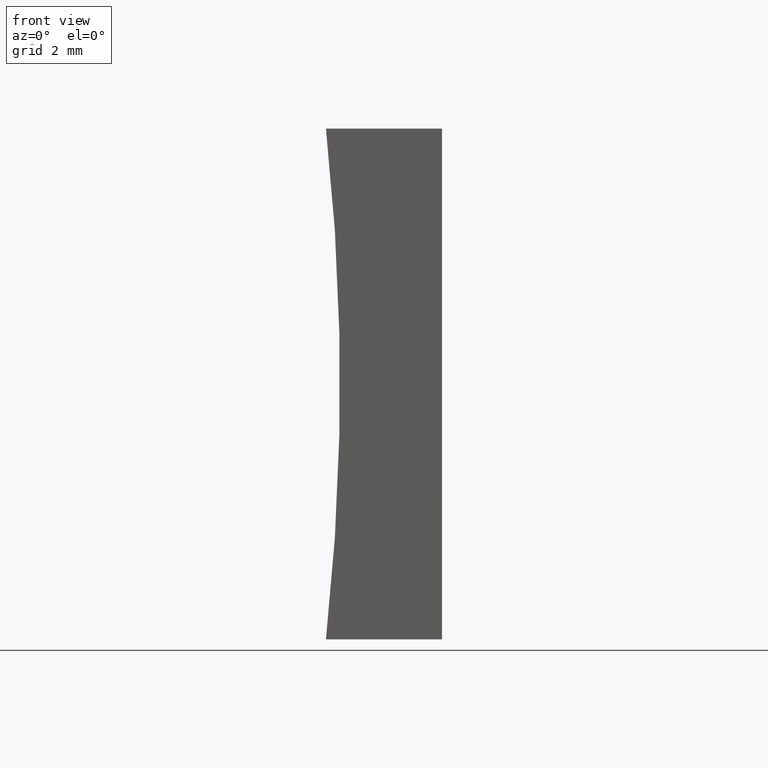
[diagram: clean part render]
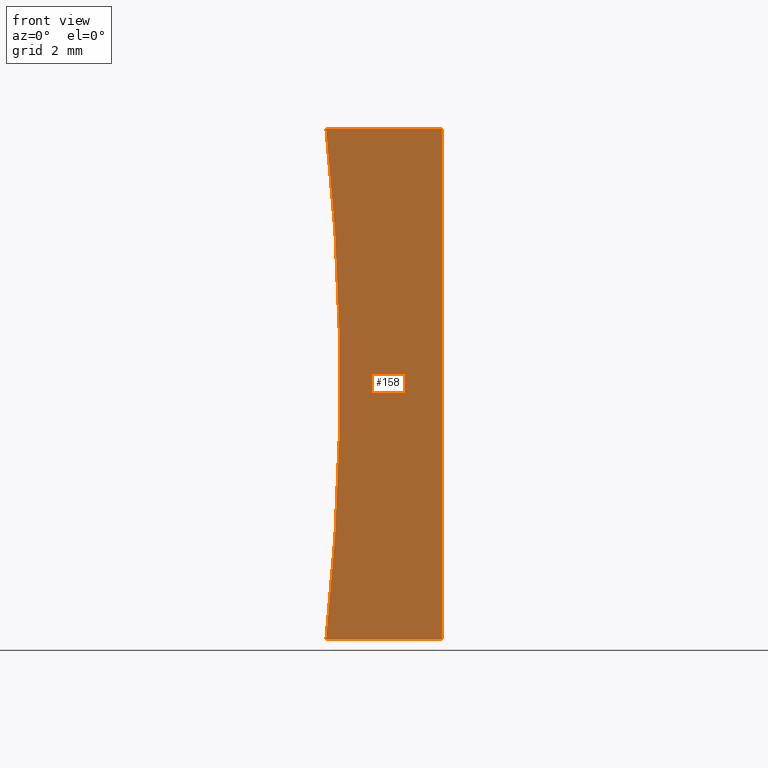
[diagram: same view with one face highlighted and labeled with its STEP entity id]
A machine part, front view. The second image highlights one B-rep face of the part: STEP entity #158.
In plain terms, the highlighted planar face has unit normal (0, 1, 0).
Its self-contained STEP definition (entity closure, byte-faithful):
#3 = CARTESIAN_POINT ( 'NONE',  ( -2.273443526304014000, 0.0000000000000000000, 8.673617379884035500E-016 ) ) ;
#19 = VERTEX_POINT ( 'NONE', #63 ) ;
#35 = CARTESIAN_POINT ( 'NONE',  ( 0.0000000000000000000, 0.0000000000000000000, 0.0000000000000000000 ) ) ;
#36 = DIRECTION ( 'NONE',  ( 0.0000000000000000000, 1.000000000000000000, 0.0000000000000000000 ) ) ;
#39 = CARTESIAN_POINT ( 'NONE',  ( -2.273443526304006900, 0.0000000000000000000, 10.00000000000000200 ) ) ;
#47 = ORIENTED_EDGE ( 'NONE', *, *, #109, .F. ) ;
#51 = CARTESIAN_POINT ( 'NONE',  ( -47.85000000000000100, 0.0000000000000000000, 5.000000000000004400 ) ) ;
#54 = EDGE_CURVE ( 'NONE', #127, #190, #117, .T. ) ;
#57 = LINE ( 'NONE', #159, #82 ) ;
#60 = DIRECTION ( 'NONE',  ( -6.123233995736766000E-017, -0.0000000000000000000, -1.000000000000000000 ) ) ;
#63 = CARTESIAN_POINT ( 'NONE',  ( 6.123233995736766300E-016, 0.0000000000000000000, 10.00000000000000000 ) ) ;
#71 = ORIENTED_EDGE ( 'NONE', *, *, #146, .F. ) ;
#77 = VECTOR ( 'NONE', #191, 1000.000000000000000 ) ;
#82 = VECTOR ( 'NONE', #60, 1000.000000000000000 ) ;
#84 = CARTESIAN_POINT ( 'NONE',  ( 0.0000000000000000000, 0.0000000000000000000, 0.0000000000000000000 ) ) ;
#85 = DIRECTION ( 'NONE',  ( 0.0000000000000000000, 0.0000000000000000000, 1.000000000000000000 ) ) ;
#108 = AXIS2_PLACEMENT_3D ( 'NONE', #51, #36, #114 ) ;
#109 = EDGE_CURVE ( 'NONE', #190, #19, #171, .T. ) ;
#114 = DIRECTION ( 'NONE',  ( 0.0000000000000000000, -0.0000000000000000000, 1.000000000000000000 ) ) ;
#117 = CIRCLE ( 'NONE', #183, 45.85000000000000100 ) ;
#120 = ORIENTED_EDGE ( 'NONE', *, *, #54, .F. ) ;
#123 = EDGE_LOOP ( 'NONE', ( #71, #186, #47, #120 ) ) ;
#127 = VERTEX_POINT ( 'NONE', #3 ) ;
#129 = DIRECTION ( 'NONE',  ( 1.000000000000000000, -0.0000000000000000000, -7.630378568483683100E-016 ) ) ;
#132 = VECTOR ( 'NONE', #129, 1000.000000000000000 ) ;
#134 = FACE_OUTER_BOUND ( 'NONE', #123, .T. ) ;
#144 = CARTESIAN_POINT ( 'NONE',  ( 6.123233995736766300E-016, 0.0000000000000000000, 10.00000000000000000 ) ) ;
#146 = EDGE_CURVE ( 'NONE', #184, #127, #174, .T. ) ;
#152 = CARTESIAN_POINT ( 'NONE',  ( -47.85000000000000100, 0.0000000000000000000, 5.000000000000004400 ) ) ;
#153 = DIRECTION ( 'NONE',  ( -0.0000000000000000000, -1.000000000000000000, -0.0000000000000000000 ) ) ;
#158 = ADVANCED_FACE ( 'NONE', ( #134 ), #164, .F. ) ;
#159 = CARTESIAN_POINT ( 'NONE',  ( 0.0000000000000000000, 0.0000000000000000000, 0.0000000000000000000 ) ) ;
#164 = PLANE ( 'NONE',  #108 ) ;
#171 = LINE ( 'NONE', #144, #132 ) ;
#174 = LINE ( 'NONE', #84, #77 ) ;
#183 = AXIS2_PLACEMENT_3D ( 'NONE', #152, #153, #85 ) ;
#184 = VERTEX_POINT ( 'NONE', #35 ) ;
#186 = ORIENTED_EDGE ( 'NONE', *, *, #197, .F. ) ;
#190 = VERTEX_POINT ( 'NONE', #39 ) ;
#191 = DIRECTION ( 'NONE',  ( -1.000000000000000000, 0.0000000000000000000, -7.630378568483681200E-016 ) ) ;
#197 = EDGE_CURVE ( 'NONE', #19, #184, #57, .T. ) ;